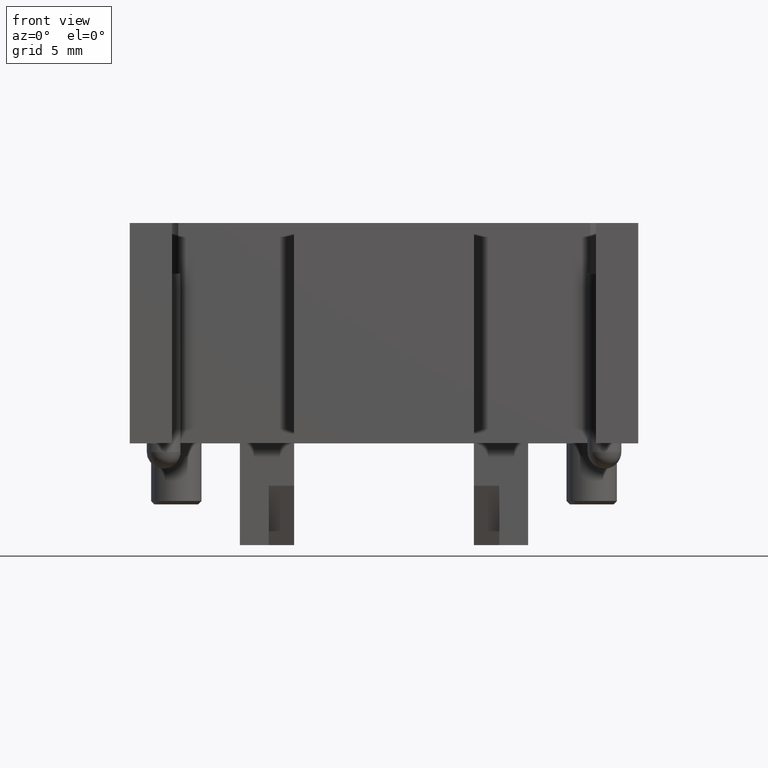
[diagram: clean part render]
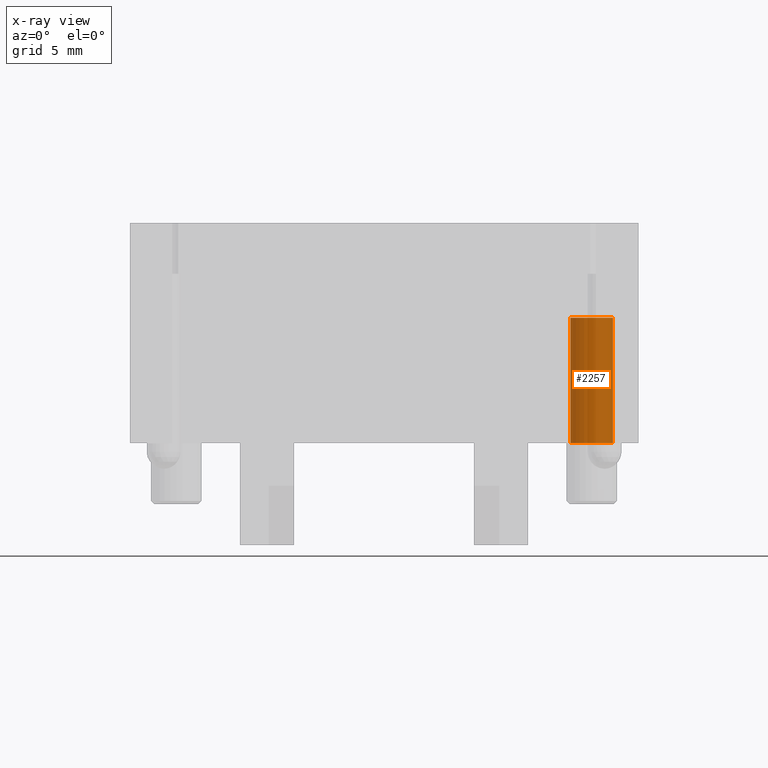
[diagram: x-ray — body ghosted, one internal face saturated and labeled with its STEP entity id]
A machine part, front view, then the same camera in x-ray: the body is ghosted and one INTERNAL B-rep face — a face not visible from any outside direction — is saturated and labeled: STEP entity #2257.
In plain terms, the highlighted cylindrical surface (bore or boss wall) has radius 1.25 mm, axis along (0, 0, 1).
Its self-contained STEP definition (entity closure, byte-faithful):
#1594=CARTESIAN_POINT('',(3.447977132707663,5.550417446610880,0.0));
#1595=VERTEX_POINT('',#1594);
#1596=CARTESIAN_POINT('',(2.197977132707663,5.550417446610880,0.0));
#1597=DIRECTION('',(0.0,0.0,1.0));
#1598=DIRECTION('',(-1.0,0.0,0.0));
#1599=AXIS2_PLACEMENT_3D('',#1596,#1597,#1598);
#1600=CIRCLE('',#1599,1.250000000000000);
#1601=EDGE_CURVE('',#1595,#1595,#1600,.T.);
#2154=CARTESIAN_POINT('',(3.447977132707663,5.550417446610880,7.400000000000001));
#2155=VERTEX_POINT('',#2154);
#2156=CARTESIAN_POINT('',(2.197977132707663,5.550417446610880,7.400000000000003));
#2157=DIRECTION('',(0.0,0.0,1.0));
#2158=DIRECTION('',(-1.0,0.0,0.0));
#2159=AXIS2_PLACEMENT_3D('',#2156,#2157,#2158);
#2160=CIRCLE('',#2159,1.250000000000000);
#2161=EDGE_CURVE('',#2155,#2155,#2160,.T.);
#2246=CARTESIAN_POINT('',(2.197977132707663,5.550417446610880,0.0));
#2247=DIRECTION('',(0.0,0.0,1.0));
#2248=DIRECTION('',(-1.0,0.0,0.0));
#2249=AXIS2_PLACEMENT_3D('',#2246,#2247,#2248);
#2250=CYLINDRICAL_SURFACE('',#2249,1.250000000000000);
#2251=ORIENTED_EDGE('',*,*,#2161,.T.);
#2252=EDGE_LOOP('',(#2251));
#2253=FACE_OUTER_BOUND('',#2252,.T.);
#2254=ORIENTED_EDGE('',*,*,#1601,.F.);
#2255=EDGE_LOOP('',(#2254));
#2256=FACE_BOUND('',#2255,.T.);
#2257=ADVANCED_FACE('',(#2253,#2256),#2250,.F.);